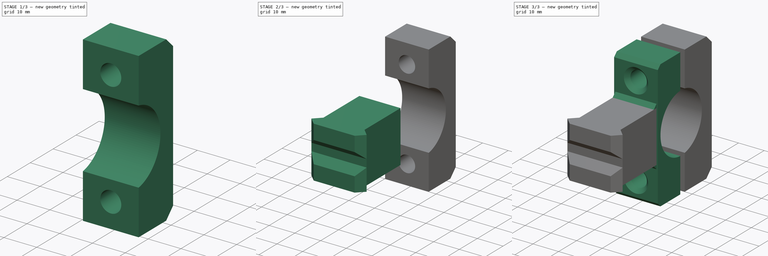
[diagram: build sequence overview — one tinted view per stage of 3, left to right]
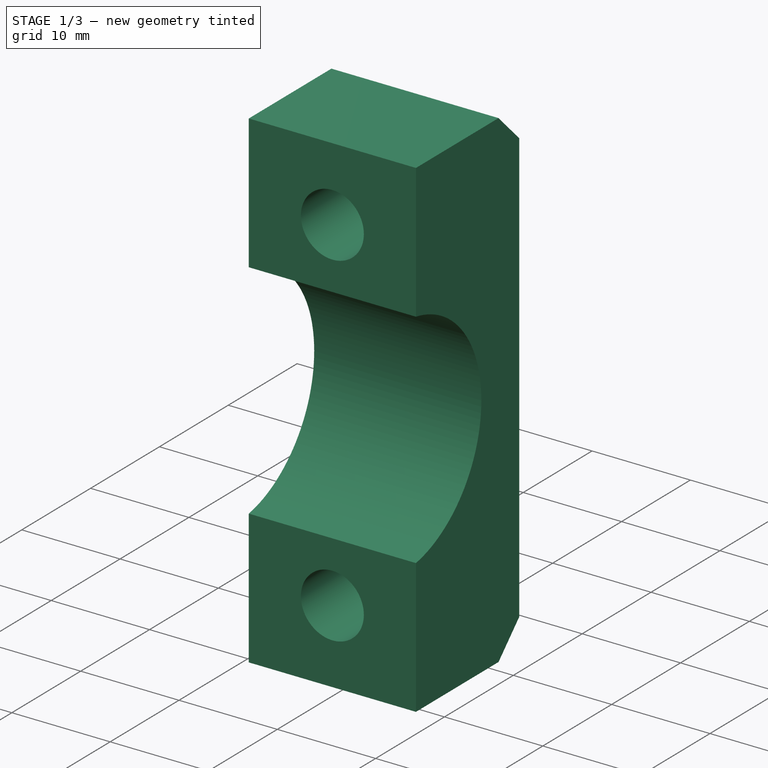
[diagram: stage 1 of 3 — iso view after this stage's code; geometry added in this stage tinted green]
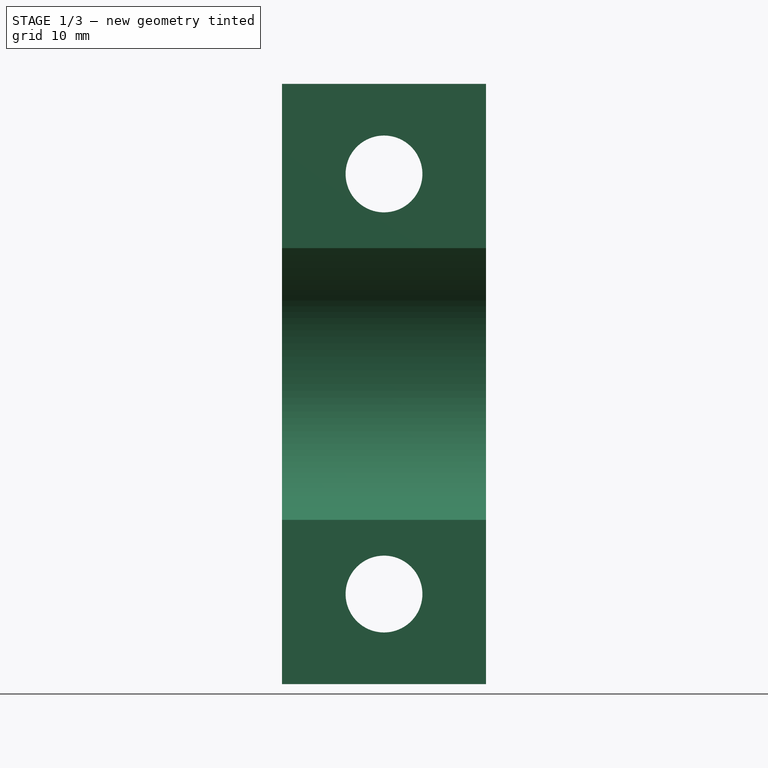
[diagram: stage 1 of 3 — front view after this stage's code; geometry added in this stage tinted green]
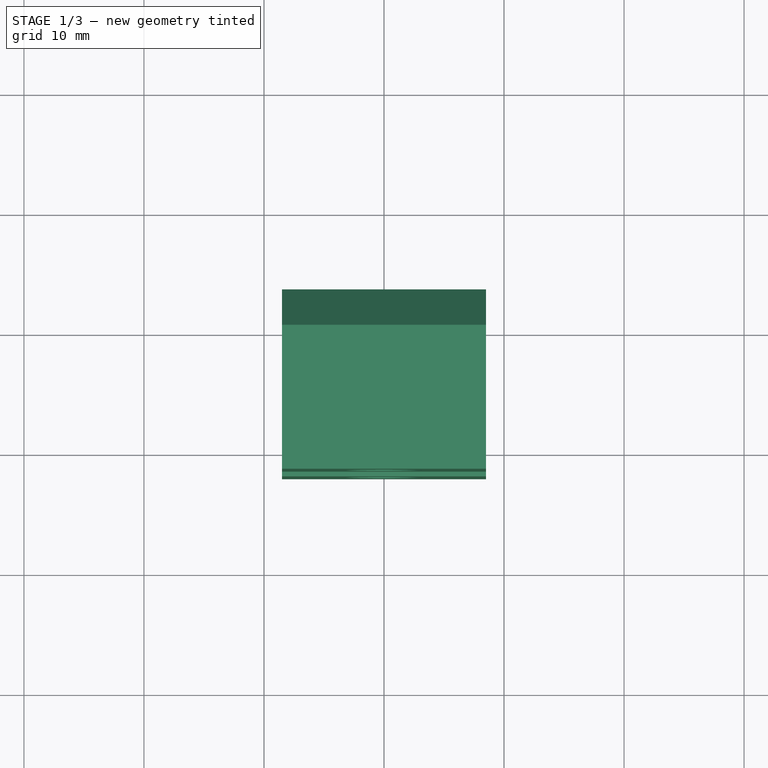
[diagram: stage 1 of 3 — top view after this stage's code; geometry added in this stage tinted green]
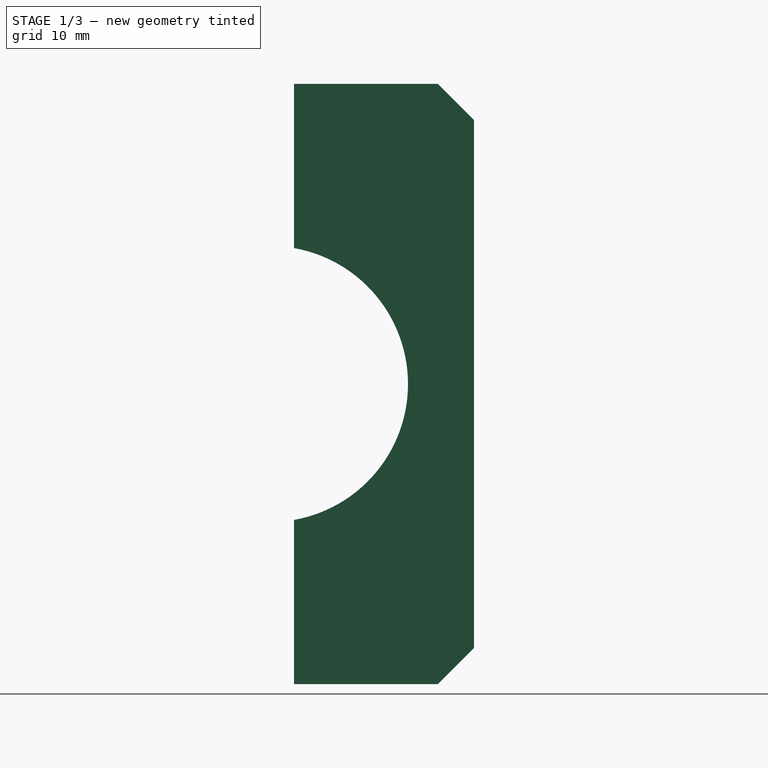
[diagram: stage 1 of 3 — right view after this stage's code; geometry added in this stage tinted green]
FCSTD DOCUMENT  (FreeCAD 0.21Rpre_29229.fc34 (Git))
Label: lampa-bicikli-rogzito
License: All rights reserved
LicenseURL: http://en.wikipedia.org/wiki/All_rights_reserved
objects: Sketcher::SketchObject×6, PartDesign::Pad×3, PartDesign::Pocket×3, PartDesign::Body×2, Part::Chamfer×2
note: 22 computed .brp shape members not serialized (recipe doc carries the construction recipe); baked Part::Feature solids carry a one-line shape summary decoded from their .brp

FEATURE [PartDesign::Body] Body  label="fegyv-lampa"
  Group = -> [Sketch002,Pad,Sketch004,Pocket,Sketch,Pad001,Sketch005,Pocket001]
  Origin = -> Origin
  Tip = -> Pocket001
FEATURE [Sketcher::SketchObject] Sketch006
  FullyConstrained = true
  MapMode = 5
  Placement = pos=(0,0,0) rot=(0.57735,0.57735,0.57735;2.0944rad)
  Support = -> [YZ_Plane001]
  sketch-geometry (6):
    g0: ArcOfCircle CenterX=6 CenterY=10 CenterZ=0 NormalX=0 NormalY=0 NormalZ=1 AngleXU=0 Radius=11.5 StartAngle=4.88719 EndAngle=7.67918
    g1: LineSegment StartX=8 StartY=35 StartZ=0 EndX=23 EndY=35 EndZ=0
    g2: LineSegment StartX=23 StartY=35 StartZ=0 EndX=23 EndY=-15 EndZ=0
    g3: LineSegment StartX=23 StartY=-15 StartZ=0 EndX=8 EndY=-15 EndZ=0
    g4: LineSegment StartX=8 StartY=-15 StartZ=0 EndX=8 EndY=-1.32475 EndZ=0
    g5: LineSegment StartX=8 StartY=21.3248 StartZ=0 EndX=8 EndY=35 EndZ=0
  constraints (19):
    c: DistanceX(g0) = 6
    c: DistanceY(g0) = 10
    c: Radius(g0) = 11.5
    c: Coincident(g1,g2)
    c: Coincident(g2,g3)
    c: Coincident(g3,g4)
    c: Coincident(g5,g1)
    c: Horizontal(g1)
    c: Horizontal(g3)
    c: Vertical(g2)
    c: Vertical(g4)
    c: DistanceY(g2,g2) = 50
    c: DistanceX(g1,g1) = 15
    c: DistanceX(g1) = 8
    c: DistanceY(g1) = 35
    c: Coincident(g4,g0)
    c: Coincident(g5,g0)
    c: DistanceX(g0) = 8
    c: DistanceX(g0) = 8
FEATURE [PartDesign::Pad] Pad002
  Direction = (1,-2e-16,3e-16)
  Length = 17
  Length2 = 10
  Midplane = true
  Placement = pos=(0,0,0) rot=(0.57735,0.57735,0.57735;2.0944rad)
  Profile = -> Sketch006
  ReferenceAxis = -> Sketch006 [N_Axis]
  Type = 0
FEATURE [Sketcher::SketchObject] Sketch007
  FullyConstrained = true
  MapMode = 5
  Placement = pos=(0,0,0) rot=(1,0,0;1.5708rad)
  Support = -> [XZ_Plane001]
  sketch-geometry (2):
    g0: Circle CenterX=0 CenterY=27.5 CenterZ=0 NormalX=0 NormalY=0 NormalZ=1 AngleXU=0 Radius=3.2
    g1: Circle CenterX=0 CenterY=-7.5 CenterZ=0 NormalX=0 NormalY=0 NormalZ=1 AngleXU=0 Radius=3.2
  constraints (6):
    c: PointOnObject(g0,g-2)
    c: PointOnObject(g1,g-2)
    c: DistanceY(g1) = -7.5
    c: DistanceY(g0) = 27.5
    c: Radius(g0) = 3.2
    c: Radius(g1) = 3.2
FEATURE [PartDesign::Pocket] Pocket002
  BaseFeature = -> Pad002
  Direction = (0,1,-2e-16)
  Length = 50
  Length2 = 5
  Placement = pos=(0,0,0) rot=(0.57735,0.57735,0.57735;2.0944rad)
  Profile = -> Sketch007
  ReferenceAxis = -> Sketch007 [N_Axis]
  Type = 0
FEATURE [Part::Chamfer] Chamfer001
  Base = -> Pocket002
  Edges = 2 edges r=3: [Edge19,Edge22]
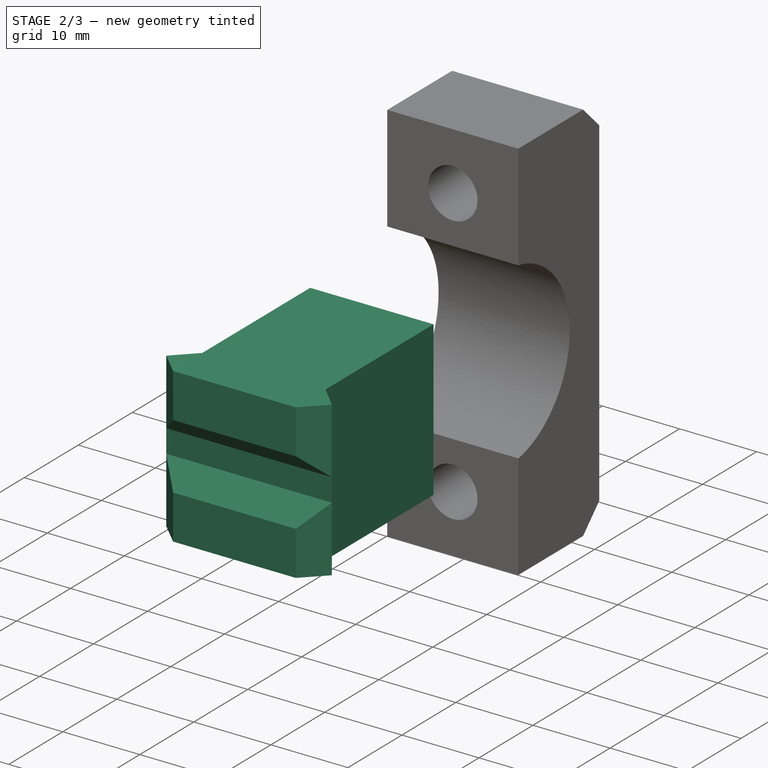
[diagram: stage 2 of 3 — iso view after this stage's code; geometry added in this stage tinted green]
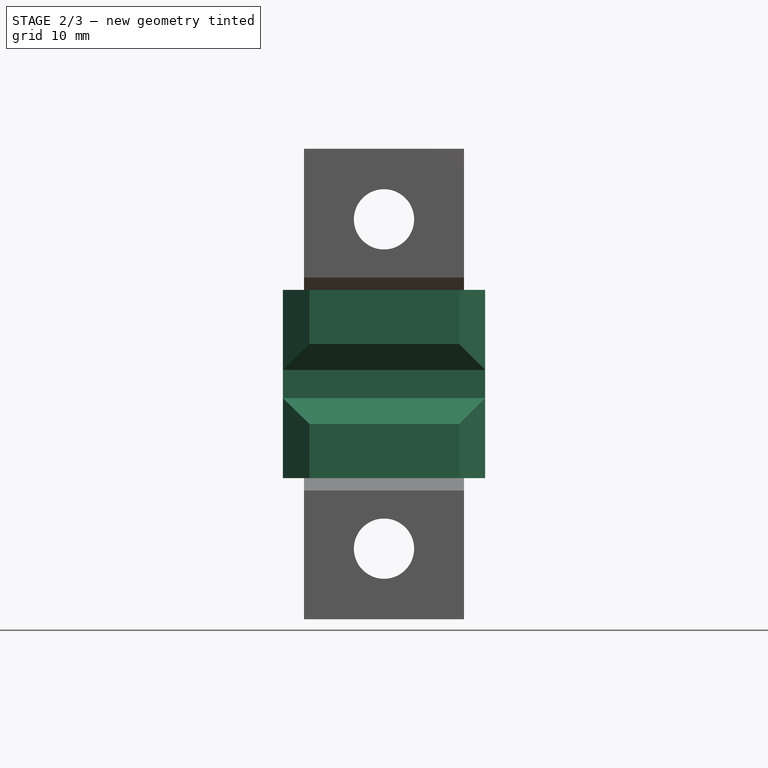
[diagram: stage 2 of 3 — front view after this stage's code; geometry added in this stage tinted green]
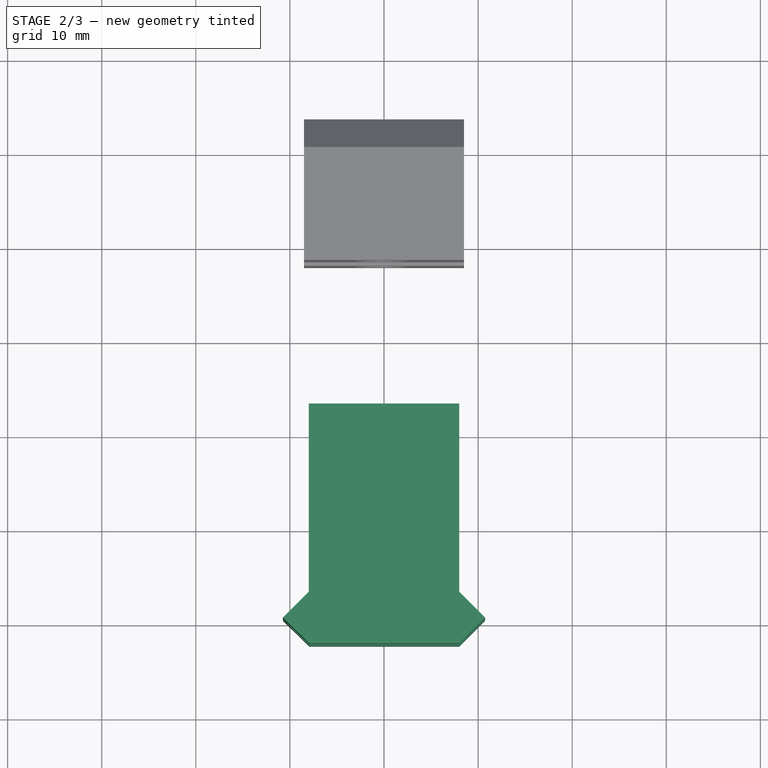
[diagram: stage 2 of 3 — top view after this stage's code; geometry added in this stage tinted green]
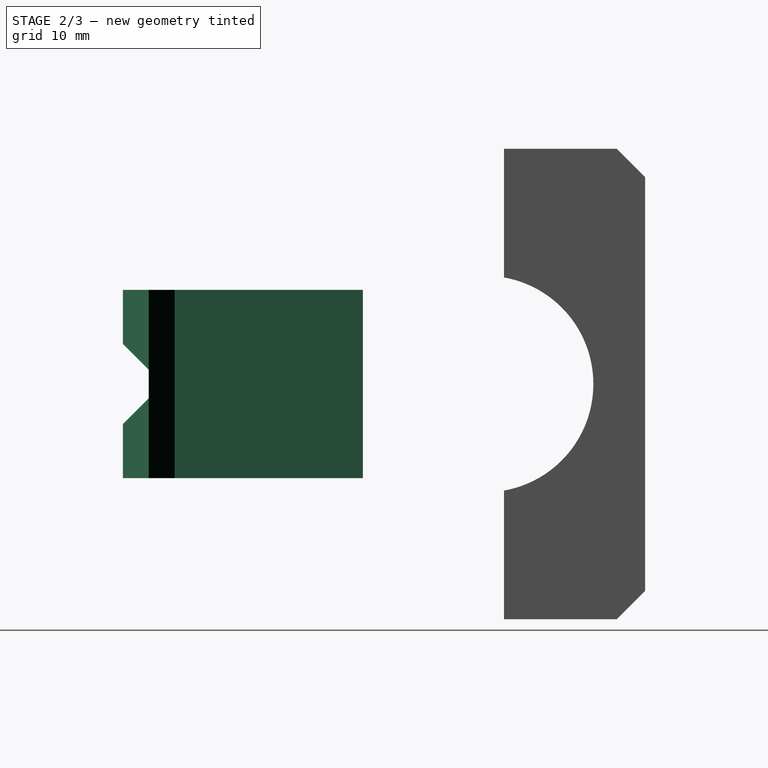
[diagram: stage 2 of 3 — right view after this stage's code; geometry added in this stage tinted green]
FEATURE [Sketcher::SketchObject] Sketch002
  FullyConstrained = true
  MapMode = 5
  sketch-geometry (8):
    g0: LineSegment StartX=8 StartY=-7 StartZ=0 EndX=8 EndY=-27 EndZ=0
    g1: LineSegment StartX=-8 StartY=-27 StartZ=0 EndX=-8 EndY=-7 EndZ=0
    g2: LineSegment StartX=8 StartY=-27 StartZ=0 EndX=10.75 EndY=-29.75 EndZ=0
    g3: LineSegment StartX=10.75 StartY=-29.75 StartZ=0 EndX=7.99329 EndY=-32.5 EndZ=0
    g4: LineSegment StartX=7.99329 StartY=-32.5 StartZ=0 EndX=-7.92401 EndY=-32.5 EndZ=0
    g5: LineSegment StartX=-7.92401 StartY=-32.5 StartZ=0 EndX=-10.75 EndY=-29.75 EndZ=0
    g6: LineSegment StartX=-10.75 StartY=-29.75 StartZ=0 EndX=-8 EndY=-27 EndZ=0
    g7: LineSegment StartX=-8 StartY=-7 StartZ=0 EndX=8 EndY=-7 EndZ=0
  constraints (25):
    c: Vertical(g0)
    c: Vertical(g1)
    c: DistanceX(g1,g0) = 16
    c: DistanceX(g0) = 8
    c: DistanceY(g0,g0) = 20
    c: DistanceY(g0) = -27
    c: Coincident(g2,g0)
    c: Coincident(g3,g2)
    c: Coincident(g4,g3)
    c: Horizontal(g4)
    c: Coincident(g5,g4)
    c: Coincident(g6,g5)
    c: DistanceX(g2,g2) = 2.75
    c: DistanceX(g6,g6) = 2.75
    c: DistanceY(g6,g6) = 2.75
    c: DistanceY(g2,g2) = 2.75
    c: DistanceY(g3,g3) = 2.75
    c: DistanceY(g1) = -27
    c: DistanceX(g5) = -10.75
    c: DistanceY(g5) = -29.75
    c: DistanceX(g4) = -7.92401
    c: DistanceX(g3) = 7.99329
    c: Coincident(g7,g1)
    c: Coincident(g7,g0)
    c: Horizontal(g7)
FEATURE [PartDesign::Pad] Pad
  Direction = (0,0,1)
  Length = 20
  Length2 = 10
  Profile = -> Sketch002
  ReferenceAxis = -> Sketch002 [N_Axis]
  Type = 0
FEATURE [Sketcher::SketchObject] Sketch004
  FullyConstrained = true
  MapMode = 5
  Placement = pos=(0,0,0) rot=(0.57735,0.57735,0.57735;2.0944rad)
  sketch-geometry (4):
    g0: LineSegment StartX=-29.75 StartY=11.5 StartZ=0 EndX=-29.75 EndY=8.5 EndZ=0
    g1: LineSegment StartX=-29.75 StartY=11.5 StartZ=0 EndX=-33.75 EndY=15.5 EndZ=0
    g2: LineSegment StartX=-29.75 StartY=8.5 StartZ=0 EndX=-33.75 EndY=4.5 EndZ=0
    g3: LineSegment StartX=-33.75 StartY=15.5 StartZ=0 EndX=-33.75 EndY=4.5 EndZ=0
  constraints (12):
    c: Vertical(g0)
    c: DistanceY(g0,g0) = 3
    c: DistanceX(g0) = -29.75
    c: DistanceY(g0) = 11.5
    c: Coincident(g2,g0)
    c: DistanceX(g1,g1) = 4
    c: DistanceX(g2,g2) = 4
    c: DistanceY(g1,g1) = 4
    c: DistanceY(g2,g2) = 4
    c: Coincident(g3,g1)
    c: Coincident(g3,g2)
    c: Coincident(g0,g1)
FEATURE [PartDesign::Pocket] Pocket
  BaseFeature = -> Pad
  Direction = (-1,0,0)
  Length = 30
  Length2 = 5
  Midplane = true
  Profile = -> Sketch004
  ReferenceAxis = -> Sketch004 [N_Axis]
  Type = 0
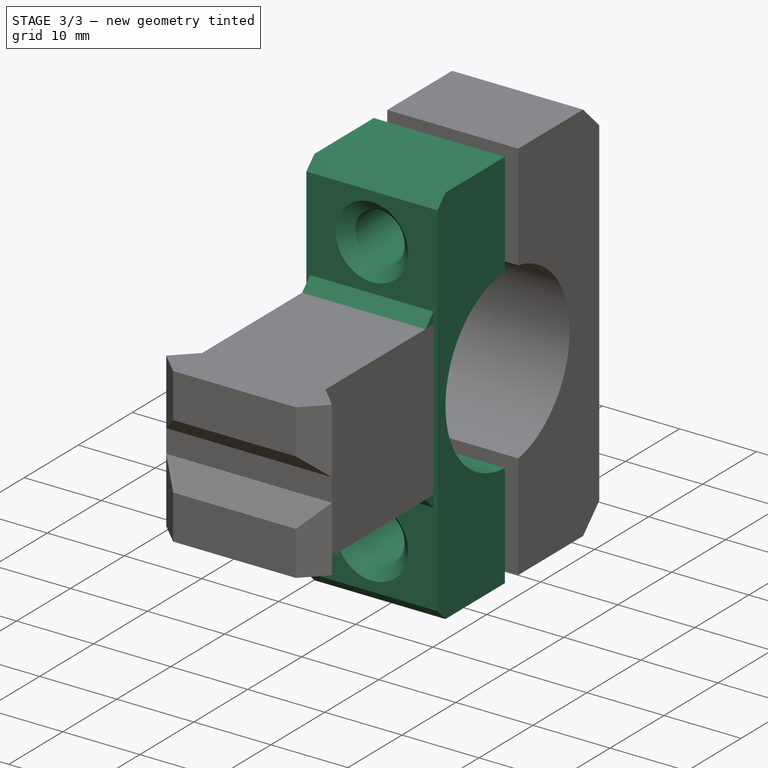
[diagram: stage 3 of 3 — iso view after this stage's code; geometry added in this stage tinted green]
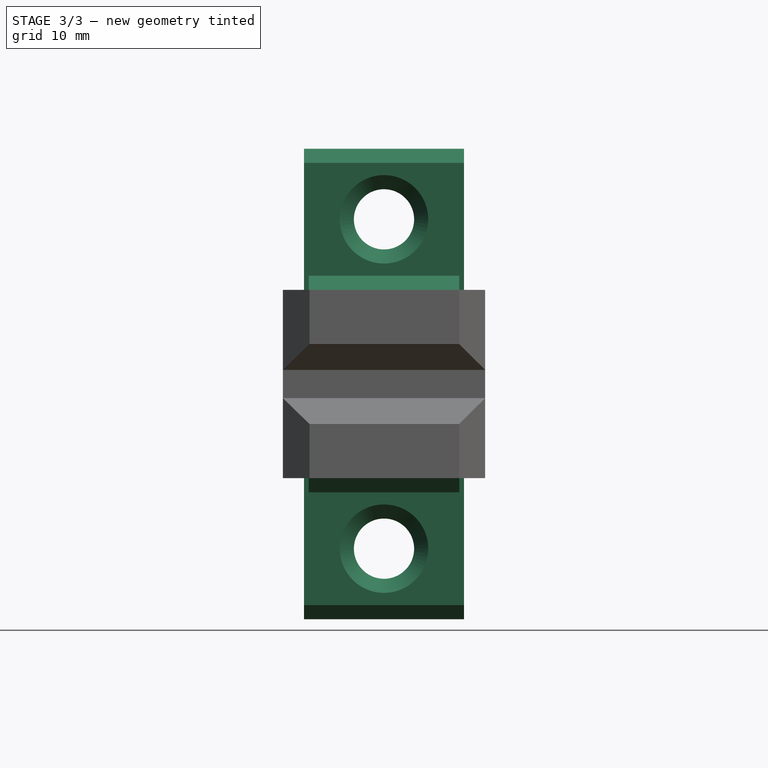
[diagram: stage 3 of 3 — front view after this stage's code; geometry added in this stage tinted green]
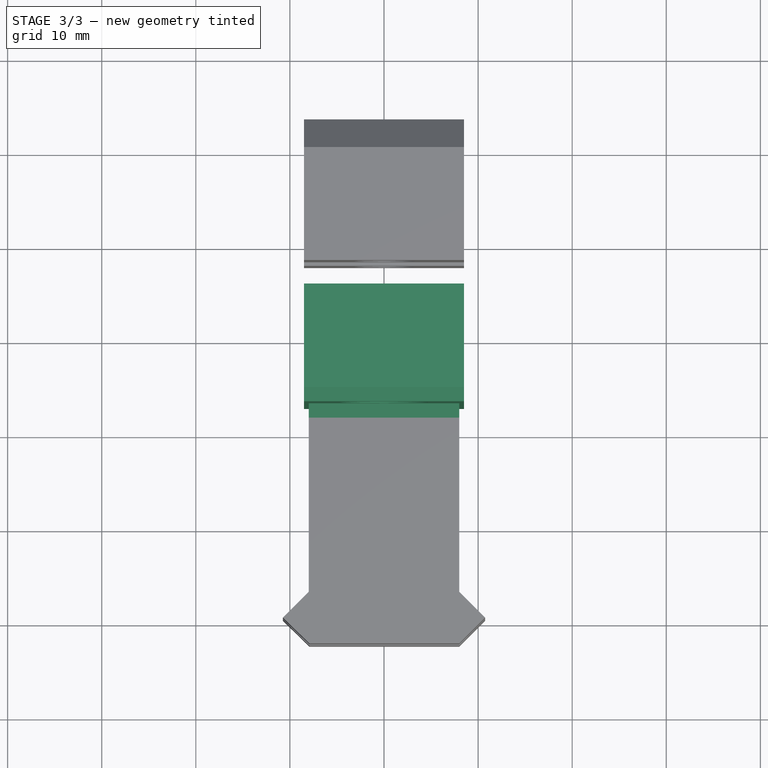
[diagram: stage 3 of 3 — top view after this stage's code; geometry added in this stage tinted green]
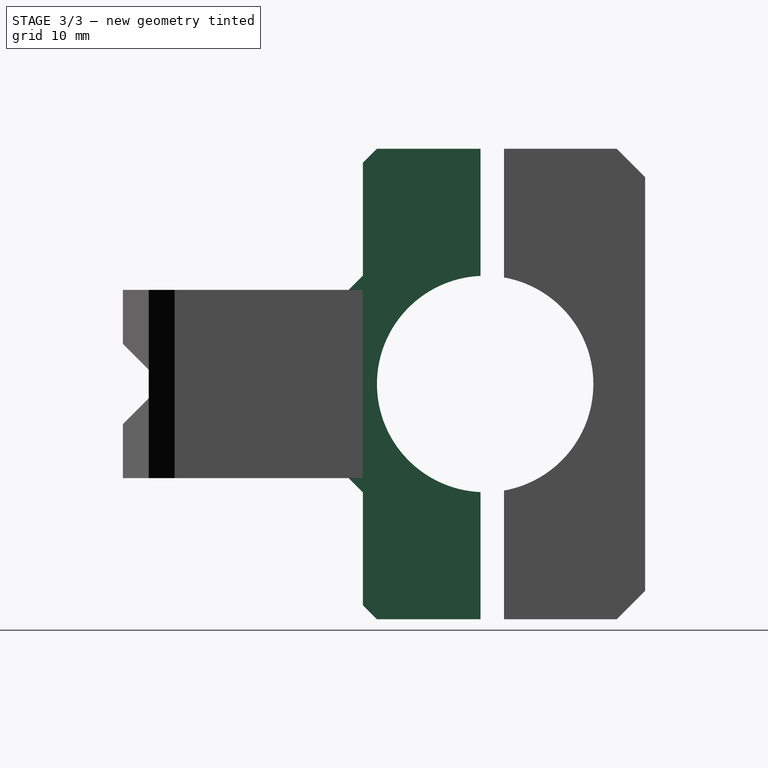
[diagram: stage 3 of 3 — right view after this stage's code; geometry added in this stage tinted green]
FEATURE [Sketcher::SketchObject] Sketch
  FullyConstrained = true
  MapMode = 5
  Placement = pos=(0,0,0) rot=(0.57735,0.57735,0.57735;2.0944rad)
  Support = -> [YZ_Plane]
  sketch-geometry (6):
    g0: ArcOfCircle CenterX=6 CenterY=10 CenterZ=0 NormalX=0 NormalY=0 NormalZ=1 AngleXU=0 Radius=11.5 StartAngle=1.61429 EndAngle=4.6689
    g1: LineSegment StartX=-7 StartY=35 StartZ=0 EndX=5.5 EndY=35 EndZ=0
    g2: LineSegment StartX=5.5 StartY=35 StartZ=0 EndX=5.5 EndY=21.4891 EndZ=0
    g3: LineSegment StartX=5.5 StartY=-15 StartZ=0 EndX=-7 EndY=-15 EndZ=0
    g4: LineSegment StartX=-7 StartY=-15 StartZ=0 EndX=-7 EndY=35 EndZ=0
    g5: LineSegment StartX=5.5 StartY=-1.48913 StartZ=0 EndX=5.5 EndY=-15 EndZ=0
  constraints (19):
    c: Radius(g0) = 11.5
    c: DistanceX(g0) = 6
    c: DistanceY(g0) = 10
    c: Coincident(g1,g2)
    c: Coincident(g5,g3)
    c: Coincident(g3,g4)
    c: Coincident(g4,g1)
    c: Horizontal(g1)
    c: Horizontal(g3)
    c: Vertical(g2)
    c: Vertical(g4)
    c: DistanceX(g1,g1) = 12.5
    c: DistanceY(g5,g2) = 50
    c: DistanceX(g1) = -7
    c: DistanceY(g1) = 35
    c: Coincident(g2,g0)
    c: Coincident(g5,g0)
    c: DistanceX(g0) = 5.5
    c: DistanceX(g3) = 5.5
FEATURE [PartDesign::Pad] Pad001
  BaseFeature = -> Pocket
  Direction = (1,-2e-16,3e-16)
  Length = 17
  Length2 = 10
  Midplane = true
  Profile = -> Sketch
  ReferenceAxis = -> Sketch [N_Axis]
  Type = 0
FEATURE [Sketcher::SketchObject] Sketch005
  FullyConstrained = true
  MapMode = 5
  Placement = pos=(0,0,0) rot=(1,0,0;1.5708rad)
  Support = -> [XZ_Plane]
  sketch-geometry (2):
    g0: Circle CenterX=0 CenterY=27.5 CenterZ=0 NormalX=0 NormalY=0 NormalZ=1 AngleXU=0 Radius=3.2
    g1: Circle CenterX=0 CenterY=-7.5 CenterZ=0 NormalX=0 NormalY=0 NormalZ=1 AngleXU=0 Radius=3.2
  constraints (6):
    c: PointOnObject(g0,g-2)
    c: PointOnObject(g1,g-2)
    c: DistanceY(g1) = -7.5
    c: DistanceY(g0) = 27.5
    c: Radius(g0) = 3.2
    c: Radius(g1) = 3.2
FEATURE [PartDesign::Pocket] Pocket001
  BaseFeature = -> Pad001
  Direction = (0,1,-2e-16)
  Length = 25
  Length2 = 5
  Midplane = true
  Profile = -> Sketch005
  ReferenceAxis = -> Sketch005 [N_Axis]
  Type = 0
FEATURE [PartDesign::Body] Body001  label="bilincs"
  Group = -> [Sketch006,Pad002,Sketch007,Pocket002]
  Origin = -> Origin001
  Tip = -> Pocket002
FEATURE [Part::Chamfer] Chamfer
  Base = -> Pocket001
  Edges = 6 edges r=1.5: [Edge19,Edge20,Edge22,Edge23,Edge26,Edge27]
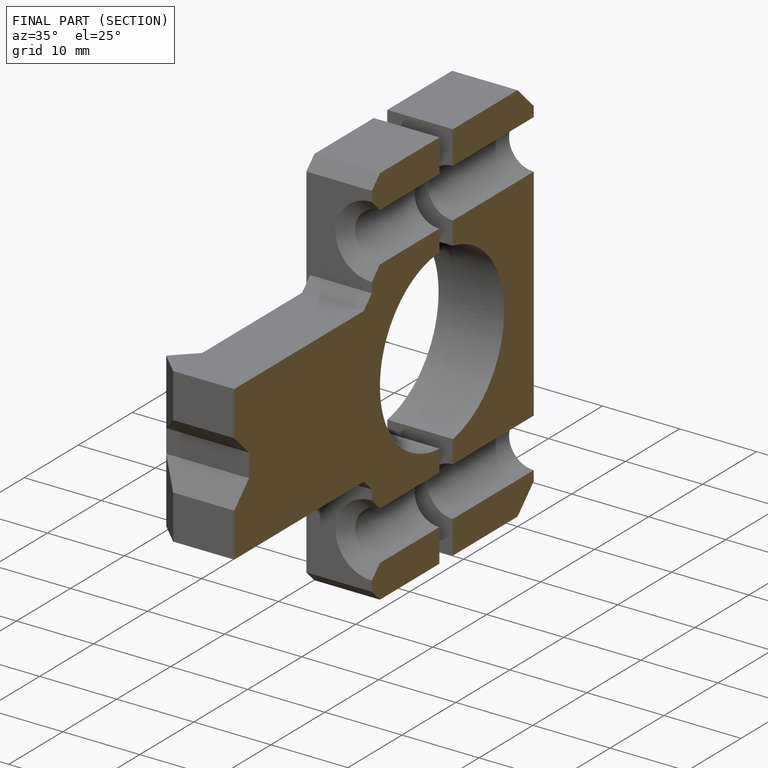
[diagram: finished part — half-section view (interior)]
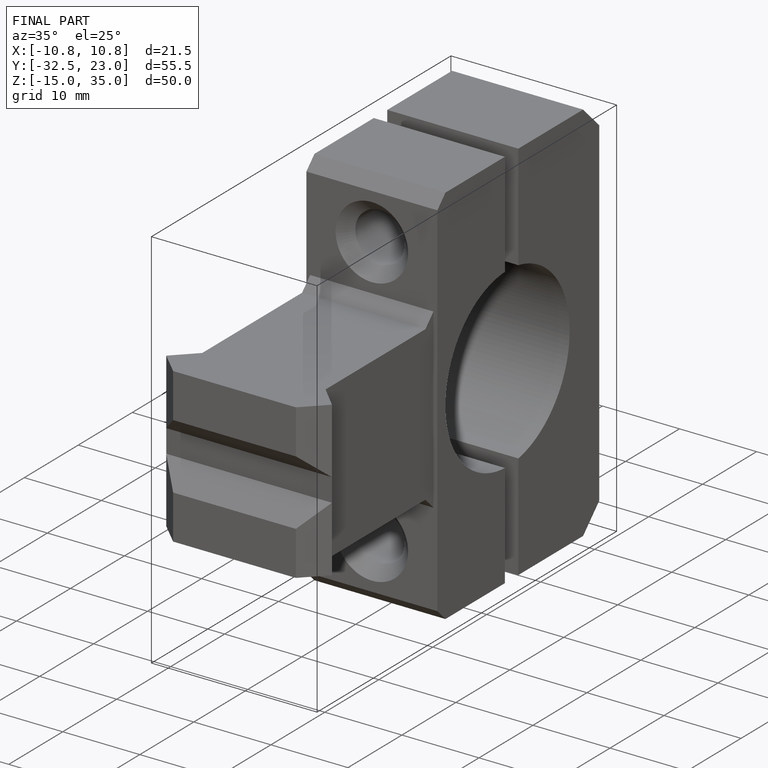
[diagram: finished part — iso view with bounding-box wireframe]
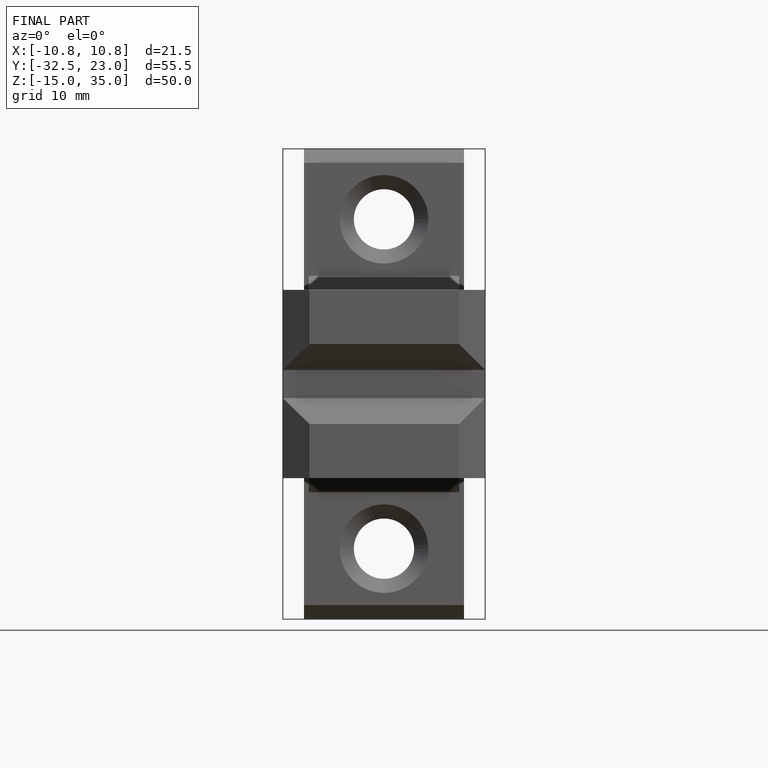
[diagram: finished part — front view with bounding-box wireframe]
